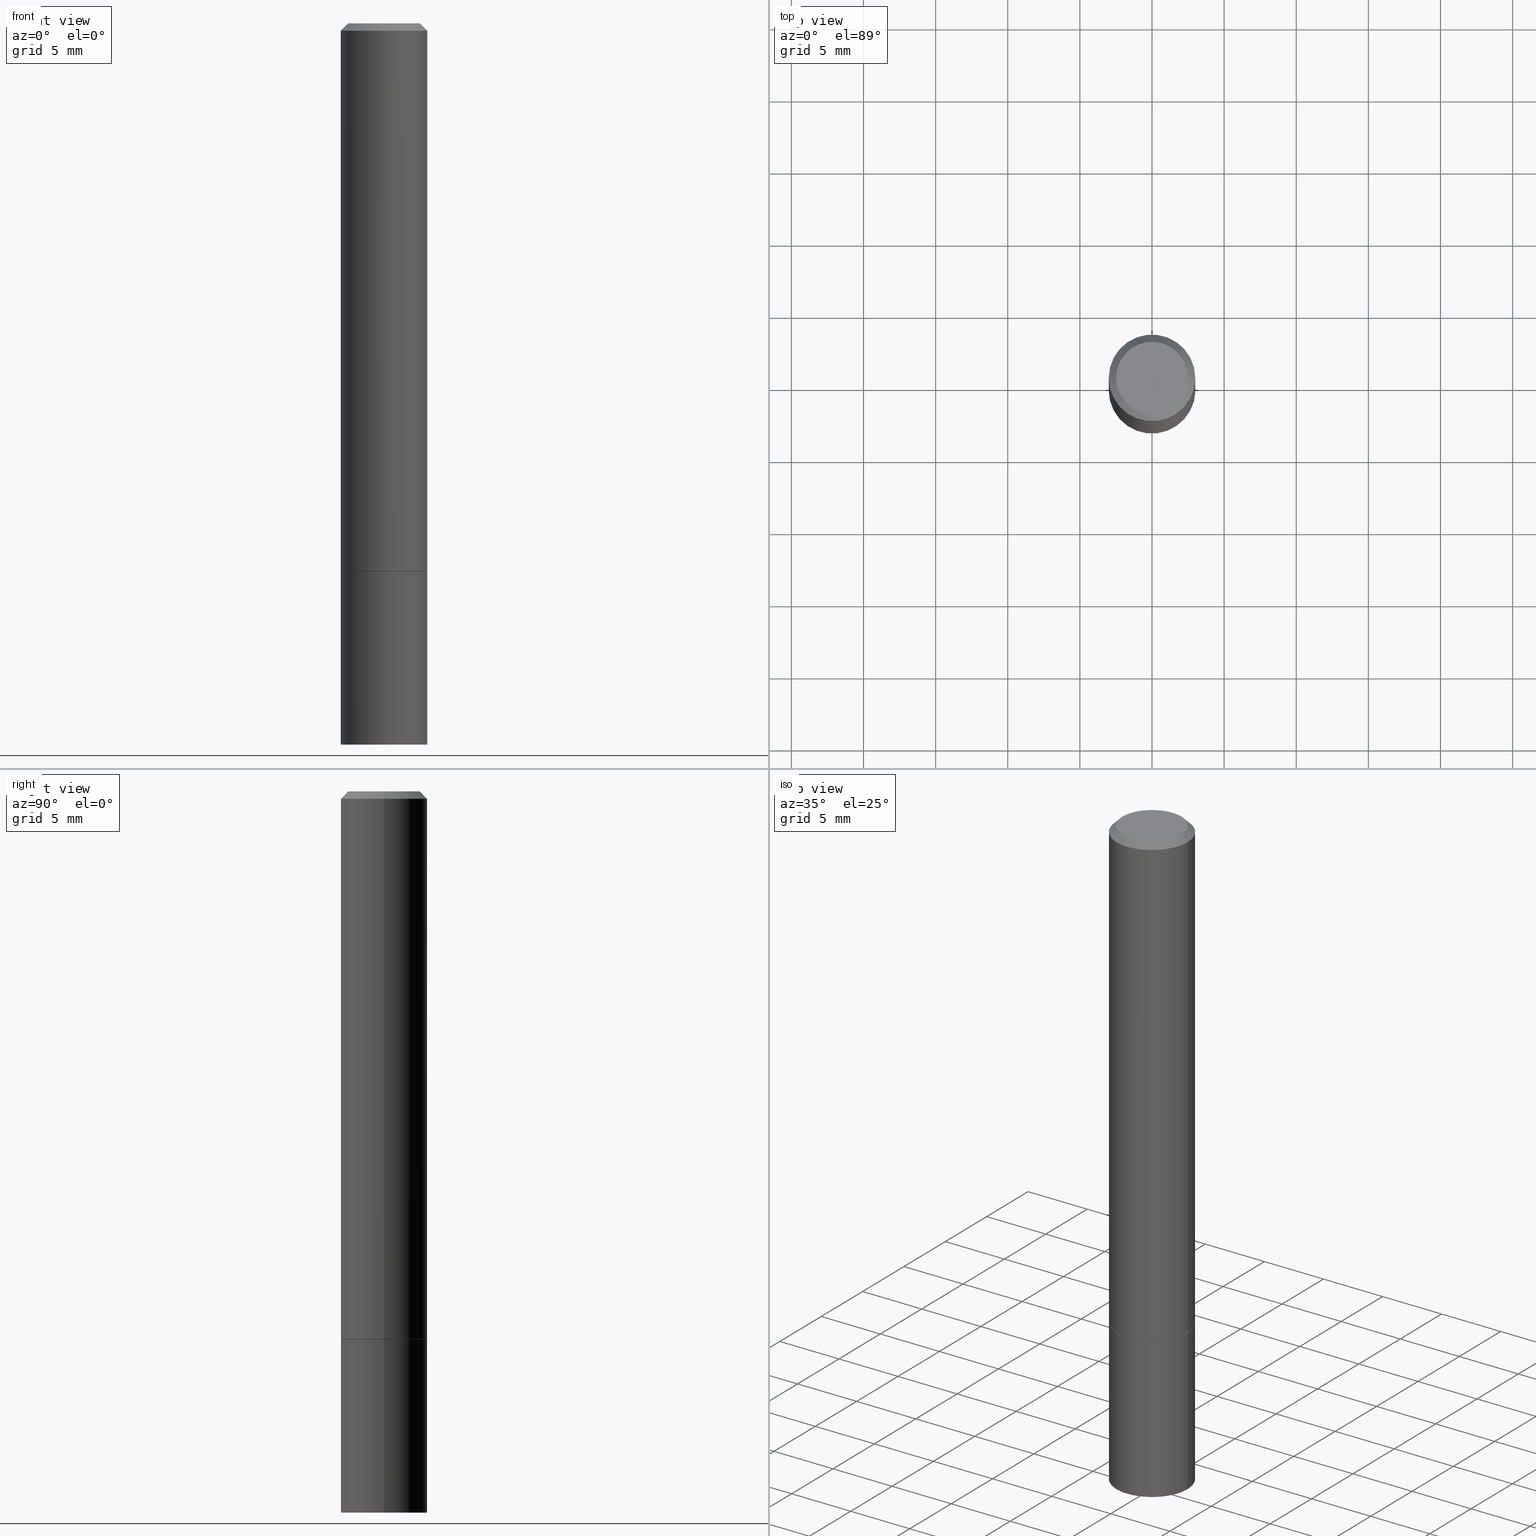
[diagram: canonical four-view strip — front | top / right | iso, engineering-drawing reading convention]
A machine part, canonical four-view strip (front | top / right | iso — engineering-drawing reading convention). The complete STEP part file that produces these views, byte-faithful:
ISO-10303-21;
HEADER;
FILE_DESCRIPTION (( 'STEP AP203' ),
    '1' );
FILE_NAME ('42606.STEP',
    '2024-02-28T03:06:35',
    ( '' ),
    ( '' ),
    'SwSTEP 2.0',
    'SolidWorks 2023',
    '' );
FILE_SCHEMA (( 'CONFIG_CONTROL_DESIGN' ));
ENDSEC;

DATA;
#1 = VECTOR ( 'NONE', #309, 39.37007874015748143 ) ;
#2 = ORIENTED_EDGE ( 'NONE', *, *, #60, .T. ) ;
#3 =( LENGTH_UNIT ( ) NAMED_UNIT ( * ) SI_UNIT ( $, .METRE. ) );
#4 = ORIENTED_EDGE ( 'NONE', *, *, #172, .T. ) ;
#5 = VECTOR ( 'NONE', #174, 39.37007874015748143 ) ;
#6 = ORIENTED_EDGE ( 'NONE', *, *, #244, .T. ) ;
#7 = DIMENSIONAL_EXPONENTS ( 1.000000000000000000, 0.000000000000000000, 0.000000000000000000, 0.000000000000000000, 0.000000000000000000, 0.000000000000000000, 0.000000000000000000 ) ;
#8 = CARTESIAN_POINT ( 'NONE',  ( 0.000000000000000000, 0.000000000000000000, 0.000000000000000000 ) ) ;
#9 = FACE_OUTER_BOUND ( 'NONE', #29, .T. ) ;
#10 = AXIS2_PLACEMENT_3D ( 'NONE', #46, #316, #75 ) ;
#11 = DIRECTION ( 'NONE',  ( 1.000000000000000000, -6.982962677686266711E-15, 4.876176775795935232E-29 ) ) ;
#12 = FACE_OUTER_BOUND ( 'NONE', #168, .T. ) ;
#13 = DIRECTION ( 'NONE',  ( 1.000000000000000000, -6.982962677686266711E-15, 0.000000000000000000 ) ) ;
#14 = DATE_AND_TIME ( #77, #127 ) ;
#15 = CLOSED_SHELL ( 'NONE', ( #151, #79, #198, #73, #317, #300, #98, #303 ) ) ;
#16 = DIRECTION ( 'NONE',  ( -2.445468806185136597E-29, 3.491481338843145583E-15, 1.000000000000000000 ) ) ;
#17 = LOCAL_TIME ( 22, 6, 35.00000000000000000, #187 ) ;
#18 = CIRCLE ( 'NONE', #291, 0.09809999999999979847 ) ;
#19 = DIRECTION ( 'NONE',  ( -2.445468806185136877E-29, 3.491481338843145188E-15, 1.000000000000000000 ) ) ;
#20 = DIRECTION ( 'NONE',  ( 1.000000000000000000, -6.982962677686266711E-15, 4.876176775795935232E-29 ) ) ;
#21 = CALENDAR_DATE ( 2024, 27, 2 ) ;
#22 = DIRECTION ( 'NONE',  ( 2.445468806185136597E-29, -3.491481338843145583E-15, -1.000000000000000000 ) ) ;
#23 = AXIS2_PLACEMENT_3D ( 'NONE', #326, #178, #39 ) ;
#24 = LOCAL_TIME ( 22, 6, 35.00000000000000000, #45 ) ;
#25 = DATE_TIME_ROLE ( 'classification_date' ) ;
#26 = CARTESIAN_POINT ( 'NONE',  ( -0.1180999999999999966, 8.391509709326782957E-16, -5.809262341591043784E-30 ) ) ;
#27 = EDGE_CURVE ( 'NONE', #117, #83, #122, .T. ) ;
#28 = DIRECTION ( 'NONE',  ( -2.445468806185136597E-29, 3.491481338843145583E-15, 1.000000000000000000 ) ) ;
#29 = EDGE_LOOP ( 'NONE', ( #259, #67, #40, #138 ) ) ;
#30 = EDGE_LOOP ( 'NONE', ( #58, #115, #193, #118 ) ) ;
#31 = ORIENTED_EDGE ( 'NONE', *, *, #169, .F. ) ;
#32 = EDGE_CURVE ( 'NONE', #83, #117, #202, .T. ) ;
#33 = MANIFOLD_SOLID_BREP ( 'Body-Move/Copy2[1]', #306 ) ;
#34 = VERTEX_POINT ( 'NONE', #61 ) ;
#35 = DIRECTION ( 'NONE',  ( -2.438088387897960049E-29, 3.491481338843145188E-15, 1.000000000000000000 ) ) ;
#36 = CARTESIAN_POINT ( 'NONE',  ( 4.813905344975441835E-29, -6.872981015512731707E-15, -1.968500000000000139 ) ) ;
#37 = CIRCLE ( 'NONE', #92, 0.1170999999999999958 ) ;
#38 = CC_DESIGN_APPROVAL ( #281, ( #347 ) ) ;
#39 = DIRECTION ( 'NONE',  ( 1.000000000000000000, -6.982962677686264344E-15, 0.000000000000000000 ) ) ;
#40 = ORIENTED_EDGE ( 'NONE', *, *, #96, .T. ) ;
#41 = APPROVAL_STATUS ( 'not_yet_approved' ) ;
#42 = DIRECTION ( 'NONE',  ( -1.000000000000000000, 6.982962677686266711E-15, 0.000000000000000000 ) ) ;
#43 = COORDINATED_UNIVERSAL_TIME_OFFSET ( 5, 0, .BEHIND. ) ;
#44 = CONICAL_SURFACE ( 'NONE', #269, 0.1180999999999997746, 0.7853981633974471688 ) ;
#45 = COORDINATED_UNIVERSAL_TIME_OFFSET ( 5, 0, .BEHIND. ) ;
#46 = CARTESIAN_POINT ( 'NONE',  ( 3.658665880933582389E-29, -5.223605231043229660E-15, -1.496099999999999985 ) ) ;
#47 = DESIGN_CONTEXT ( 'detailed design', #57, 'design' ) ;
#48 = PERSON_AND_ORGANIZATION_ROLE ( 'design_owner' ) ;
#49 = CARTESIAN_POINT ( 'NONE',  ( -0.1170999999999999958, -4.391559687468152471E-15, -1.496099999999999985 ) ) ;
#50 = EDGE_CURVE ( 'NONE', #341, #286, #179, .T. ) ;
#51 = CARTESIAN_POINT ( 'NONE',  ( 6.850286386810212718E-16, 0.09809999999999979847, -3.510513443207126726E-16 ) ) ;
#52 = CYLINDRICAL_SURFACE ( 'NONE', #345, 0.1180999999999999966 ) ;
#53 = EDGE_LOOP ( 'NONE', ( #285, #85, #6, #254 ) ) ;
#54 = ORIENTED_EDGE ( 'NONE', *, *, #89, .F. ) ;
#55 = AXIS2_PLACEMENT_3D ( 'NONE', #149, #266, #13 ) ;
#56 = DIRECTION ( 'NONE',  ( -1.000000000000000000, 6.982962677686265922E-15, -4.876176775795935793E-29 ) ) ;
#57 = APPLICATION_CONTEXT ( 'configuration controlled 3d designs of mechanical parts and assemblies' ) ;
#58 = ORIENTED_EDGE ( 'NONE', *, *, #50, .T. ) ;
#59 = LOCAL_TIME ( 22, 6, 35.00000000000000000, #43 ) ;
#60 = EDGE_CURVE ( 'NONE', #144, #88, #296, .T. ) ;
#61 = CARTESIAN_POINT ( 'NONE',  ( 0.1170999999999999958, -6.041310160600291119E-15, -1.496099999999999985 ) ) ;
#62 = DIRECTION ( 'NONE',  ( 1.000000000000000000, -6.982962677686265133E-15, 0.000000000000000000 ) ) ;
#63 = DIRECTION ( 'NONE',  ( -2.445468806185136597E-29, 3.491481338843145583E-15, 1.000000000000000000 ) ) ;
#64 = CIRCLE ( 'NONE', #148, 0.1170999999999999958 ) ;
#65 =( NAMED_UNIT ( * ) SI_UNIT ( $, .STERADIAN. ) SOLID_ANGLE_UNIT ( ) );
#66 = CARTESIAN_POINT ( 'NONE',  ( 3.658665880933582389E-29, -5.223605231043229660E-15, -1.496099999999999985 ) ) ;
#67 = ORIENTED_EDGE ( 'NONE', *, *, #145, .T. ) ;
#68 = SHAPE_DEFINITION_REPRESENTATION ( #206, #204 ) ;
#69 = FACE_OUTER_BOUND ( 'NONE', #166, .T. ) ;
#70 = APPROVAL_DATE_TIME ( #100, #275 ) ;
#71 = AXIS2_PLACEMENT_3D ( 'NONE', #330, #324, #94 ) ;
#72 = DIRECTION ( 'NONE',  ( -1.000000000000000000, 6.982962677686265922E-15, -4.876176775795935793E-29 ) ) ;
#73 = ADVANCED_FACE ( 'NONE', ( #354 ), #44, .T. ) ;
#74 = PERSON_AND_ORGANIZATION ( #177, #154 ) ;
#75 = DIRECTION ( 'NONE',  ( 1.000000000000000000, -6.982962677686264344E-15, 0.000000000000000000 ) ) ;
#76 = UNCERTAINTY_MEASURE_WITH_UNIT (LENGTH_MEASURE( 1.000000000000000082E-05 ), #114, 'distance_accuracy_value', 'NONE');
#77 = CALENDAR_DATE ( 2024, 27, 2 ) ;
#78 = DIRECTION ( 'NONE',  ( 2.438088387897960049E-29, -3.491481338843145188E-15, -1.000000000000000000 ) ) ;
#79 = ADVANCED_FACE ( 'NONE', ( #12 ), #95, .T. ) ;
#80 = APPROVAL_DATE_TIME ( #212, #220 ) ;
#81 = CARTESIAN_POINT ( 'NONE',  ( -0.09809999999999979847, 7.199434520694523292E-16, -1.707404996040655701E-17 ) ) ;
#82 = DIRECTION ( 'NONE',  ( 1.000000000000000000, -6.982962677686266711E-15, 4.876176775795936353E-29 ) ) ;
#83 = VERTEX_POINT ( 'NONE', #153 ) ;
#84 = ORIENTED_EDGE ( 'NONE', *, *, #239, .T. ) ;
#85 = ORIENTED_EDGE ( 'NONE', *, *, #175, .T. ) ;
#86 = VECTOR ( 'NONE', #19, 39.37007874015748143 ) ;
#87 = CARTESIAN_POINT ( 'NONE',  ( 0.000000000000000000, 0.000000000000000000, 0.000000000000000000 ) ) ;
#88 = VERTEX_POINT ( 'NONE', #176 ) ;
#89 = EDGE_CURVE ( 'NONE', #34, #112, #37, .T. ) ;
#90 = APPLICATION_PROTOCOL_DEFINITION ( 'international standard', 'config_control_design', 1994, #298 ) ;
#91 = CARTESIAN_POINT ( 'NONE',  ( 3.658665880933582389E-29, -5.223605231043229660E-15, -1.496099999999999985 ) ) ;
#92 = AXIS2_PLACEMENT_3D ( 'NONE', #91, #205, #351 ) ;
#93 = APPROVAL_PERSON_ORGANIZATION ( #270, #220, #310 ) ;
#94 = DIRECTION ( 'NONE',  ( 1.000000000000000000, -6.982962677686265133E-15, 0.000000000000000000 ) ) ;
#95 = CYLINDRICAL_SURFACE ( 'NONE', #251, 0.1180999999999998995 ) ;
#96 = EDGE_CURVE ( 'NONE', #341, #88, #236, .T. ) ;
#97 = ORIENTED_EDGE ( 'NONE', *, *, #175, .F. ) ;
#98 = ADVANCED_FACE ( 'NONE', ( #208 ), #293, .F. ) ;
#99 = ORIENTED_EDGE ( 'NONE', *, *, #337, .F. ) ;
#100 = DATE_AND_TIME ( #103, #59 ) ;
#101 = CC_DESIGN_DATE_AND_TIME_ASSIGNMENT ( #14, #25, ( #165 ) ) ;
#102 = LINE ( 'NONE', #279, #173 ) ;
#103 = CALENDAR_DATE ( 2024, 27, 2 ) ;
#104 = DIRECTION ( 'NONE',  ( -2.445468806185136877E-29, 3.491481338843145188E-15, 1.000000000000000000 ) ) ;
#105 = CIRCLE ( 'NONE', #183, 0.1180999999999999966 ) ;
#106 = FACE_OUTER_BOUND ( 'NONE', #211, .T. ) ;
#107 = PRODUCT_DEFINITION_FORMATION_WITH_SPECIFIED_SOURCE ( 'ANY', '', #261, .NOT_KNOWN. ) ;
#108 = APPLICATION_PROTOCOL_DEFINITION ( 'international standard', 'config_control_design', 1994, #57 ) ;
#109 = DIRECTION ( 'NONE',  ( 1.000000000000000000, -6.982962677686266711E-15, 0.000000000000000000 ) ) ;
#110 = DATE_TIME_ROLE ( 'creation_date' ) ;
#111 = CC_DESIGN_PERSON_AND_ORGANIZATION_ASSIGNMENT ( #185, #48, ( #261 ) ) ;
#112 = VERTEX_POINT ( 'NONE', #125 ) ;
#113 = ADVANCED_FACE ( 'NONE', ( #9 ), #124, .T. ) ;
#114 =( CONVERSION_BASED_UNIT ( 'INCH', #197 ) LENGTH_UNIT ( ) NAMED_UNIT ( #7 ) );
#115 = ORIENTED_EDGE ( 'NONE', *, *, #288, .T. ) ;
#116 = DIRECTION ( 'NONE',  ( 2.438088387897960049E-29, -3.491481338843145188E-15, -1.000000000000000000 ) ) ;
#117 = VERTEX_POINT ( 'NONE', #234 ) ;
#118 = ORIENTED_EDGE ( 'NONE', *, *, #96, .F. ) ;
#119 = ORIENTED_EDGE ( 'NONE', *, *, #217, .T. ) ;
#120 = DIRECTION ( 'NONE',  ( 0.000000000000000000, 0.000000000000000000, 1.000000000000000000 ) ) ;
#121 = CARTESIAN_POINT ( 'NONE',  ( 0.000000000000000000, 0.000000000000000000, 0.000000000000000000 ) ) ;
#122 = CIRCLE ( 'NONE', #71, 0.1180999999999999966 ) ;
#123 = DIRECTION ( 'NONE',  ( -2.445468806185136597E-29, 3.491481338843145583E-15, 1.000000000000000000 ) ) ;
#124 = CYLINDRICAL_SURFACE ( 'NONE', #132, 0.1180999999999999966 ) ;
#125 = CARTESIAN_POINT ( 'NONE',  ( -0.1170999999999999958, -4.386261233119930069E-15, -1.496099999999999985 ) ) ;
#126 = APPROVAL_STATUS ( 'not_yet_approved' ) ;
#127 = LOCAL_TIME ( 22, 6, 35.00000000000000000, #278 ) ;
#128 = DIRECTION ( 'NONE',  ( -2.445468806185136597E-29, 3.491481338843145583E-15, 1.000000000000000000 ) ) ;
#129 = COORDINATED_UNIVERSAL_TIME_OFFSET ( 5, 0, .BEHIND. ) ;
#130 = FACE_OUTER_BOUND ( 'NONE', #318, .T. ) ;
#131 = DIRECTION ( 'NONE',  ( -2.445468806185136597E-29, 3.491481338843145583E-15, 1.000000000000000000 ) ) ;
#132 = AXIS2_PLACEMENT_3D ( 'NONE', #121, #180, #207 ) ;
#133 = CARTESIAN_POINT ( 'NONE',  ( 3.658665880933582389E-29, -5.223605231043229660E-15, -1.496099999999999985 ) ) ;
#134 = CARTESIAN_POINT ( 'NONE',  ( 0.1180999999999998995, -8.246878922347473751E-16, 5.758764772214994835E-30 ) ) ;
#135 = LINE ( 'NONE', #340, #339 ) ;
#136 = CC_DESIGN_PERSON_AND_ORGANIZATION_ASSIGNMENT ( #267, #272, ( #107 ) ) ;
#137 = AXIS2_PLACEMENT_3D ( 'NONE', #66, #35, #268 ) ;
#138 = ORIENTED_EDGE ( 'NONE', *, *, #60, .F. ) ;
#139 = FACE_OUTER_BOUND ( 'NONE', #30, .T. ) ;
#140 = ORIENTED_EDGE ( 'NONE', *, *, #27, .F. ) ;
#141 = ORIENTED_EDGE ( 'NONE', *, *, #237, .F. ) ;
#142 = VERTEX_POINT ( 'NONE', #349 ) ;
#143 = AXIS2_PLACEMENT_3D ( 'NONE', #313, #189, #109 ) ;
#144 = VERTEX_POINT ( 'NONE', #294 ) ;
#145 = EDGE_CURVE ( 'NONE', #286, #341, #105, .T. ) ;
#146 = CARTESIAN_POINT ( 'NONE',  ( 3.656220412127397346E-29, -5.220113749704386653E-15, -1.495099999999999874 ) ) ;
#147 = DIRECTION ( 'NONE',  ( 1.000000000000000000, -6.982962677686265133E-15, 0.000000000000000000 ) ) ;
#148 = AXIS2_PLACEMENT_3D ( 'NONE', #133, #157, #280 ) ;
#149 = CARTESIAN_POINT ( 'NONE',  ( 4.890937612370282792E-31, -6.982962677686303935E-17, -0.02000000000000003858 ) ) ;
#150 = CARTESIAN_POINT ( 'NONE',  ( 4.813905344975441835E-29, -6.872981015512731707E-15, -1.968500000000000139 ) ) ;
#151 = ADVANCED_FACE ( 'NONE', ( #262 ), #362, .T. ) ;
#152 = DATE_AND_TIME ( #308, #24 ) ;
#153 = CARTESIAN_POINT ( 'NONE',  ( -0.1180999999999999966, -1.805820717307944806E-15, -1.495099999999999874 ) ) ;
#154 = ORGANIZATION ( 'UNSPECIFIED', 'UNSPECIFIED', '' ) ;
#155 = APPROVAL_DATE_TIME ( #152, #281 ) ;
#156 = MANIFOLD_SOLID_BREP ( 'Body-Move/Copy2[2]', #15 ) ;
#157 = DIRECTION ( 'NONE',  ( -2.445468806185136597E-29, 3.491481338843145583E-15, 1.000000000000000000 ) ) ;
#158 = PERSON_AND_ORGANIZATION_ROLE ( 'creator' ) ;
#159 = LINE ( 'NONE', #134, #355 ) ;
#160 = PLANE ( 'NONE',  #264 ) ;
#161 = APPROVAL_STATUS ( 'not_yet_approved' ) ;
#162 = DIRECTION ( 'NONE',  ( -1.000000000000000000, 6.982962677686266711E-15, 0.000000000000000000 ) ) ;
#163 = LINE ( 'NONE', #49, #195 ) ;
#164 = ORIENTED_EDGE ( 'NONE', *, *, #50, .F. ) ;
#165 = SECURITY_CLASSIFICATION ( '', '', #301 ) ;
#166 = EDGE_LOOP ( 'NONE', ( #84, #2 ) ) ;
#167 = EDGE_LOOP ( 'NONE', ( #54, #97 ) ) ;
#168 = EDGE_LOOP ( 'NONE', ( #322, #320, #170, #141 ) ) ;
#169 = EDGE_CURVE ( 'NONE', #199, #142, #215, .T. ) ;
#170 = ORIENTED_EDGE ( 'NONE', *, *, #232, .F. ) ;
#171 = AXIS2_PLACEMENT_3D ( 'NONE', #250, #191, #331 ) ;
#172 = EDGE_CURVE ( 'NONE', #226, #352, #319, .T. ) ;
#173 = VECTOR ( 'NONE', #186, 39.37007874015748854 ) ;
#174 = DIRECTION ( 'NONE',  ( -2.445468806185136877E-29, 3.491481338843145188E-15, 1.000000000000000000 ) ) ;
#175 = EDGE_CURVE ( 'NONE', #112, #34, #64, .T. ) ;
#176 = CARTESIAN_POINT ( 'NONE',  ( 0.1180999999999999966, -6.048293123277977134E-15, -1.496099999999999985 ) ) ;
#177 = PERSON ( 'UNSPECIFIED', 'UNSPECIFIED', 'UNSPECIFIED', ('UNSPECIFIED'), ('UNSPECIFIED'), ('UNSPECIFIED') ) ;
#178 = DIRECTION ( 'NONE',  ( -2.445468806185136597E-29, 3.491481338843145583E-15, 1.000000000000000000 ) ) ;
#179 = CIRCLE ( 'NONE', #227, 0.1180999999999999966 ) ;
#180 = DIRECTION ( 'NONE',  ( -2.445468806185136597E-29, 3.491481338843145583E-15, 1.000000000000000000 ) ) ;
#181 = EDGE_LOOP ( 'NONE', ( #164, #346 ) ) ;
#182 = LINE ( 'NONE', #26, #86 ) ;
#183 = AXIS2_PLACEMENT_3D ( 'NONE', #36, #63, #147 ) ;
#184 = CC_DESIGN_APPROVAL ( #220, ( #107 ) ) ;
#185 = PERSON_AND_ORGANIZATION ( #177, #154 ) ;
#186 = DIRECTION ( 'NONE',  ( 0.7071067811865232589, -2.468850131082003836E-15, 0.7071067811865715536 ) ) ;
#187 = COORDINATED_UNIVERSAL_TIME_OFFSET ( 5, 0, .BEHIND. ) ;
#188 = CARTESIAN_POINT ( 'NONE',  ( 0.1180999999999999966, -7.697668907747479970E-15, -1.968500000000000139 ) ) ;
#189 = DIRECTION ( 'NONE',  ( -2.445468806185136597E-29, 3.491481338843145583E-15, 1.000000000000000000 ) ) ;
#190 = CIRCLE ( 'NONE', #171, 0.1180999999999999966 ) ;
#191 = DIRECTION ( 'NONE',  ( -2.445468806185136597E-29, 3.491481338843145583E-15, 1.000000000000000000 ) ) ;
#192 = CC_DESIGN_PERSON_AND_ORGANIZATION_ASSIGNMENT ( #245, #242, ( #165 ) ) ;
#193 = ORIENTED_EDGE ( 'NONE', *, *, #239, .F. ) ;
#194 = ORIENTED_EDGE ( 'NONE', *, *, #232, .T. ) ;
#195 = VECTOR ( 'NONE', #271, 39.37007874015748854 ) ;
#196 = ORIENTED_EDGE ( 'NONE', *, *, #276, .T. ) ;
#197 = LENGTH_MEASURE_WITH_UNIT ( LENGTH_MEASURE( 0.02539999999999999897 ), #3 );
#198 = ADVANCED_FACE ( 'NONE', ( #106 ), #247, .T. ) ;
#199 = VERTEX_POINT ( 'NONE', #274 ) ;
#200 = ORIENTED_EDGE ( 'NONE', *, *, #172, .F. ) ;
#201 = ORIENTED_EDGE ( 'NONE', *, *, #244, .F. ) ;
#202 = CIRCLE ( 'NONE', #290, 0.1180999999999999966 ) ;
#203 = AXIS2_PLACEMENT_3D ( 'NONE', #51, #78, #243 ) ;
#204 = ADVANCED_BREP_SHAPE_REPRESENTATION ( '42606', ( #33, #156, #216 ), #323 ) ;
#205 = DIRECTION ( 'NONE',  ( -2.445468806185136597E-29, 3.491481338843145583E-15, 1.000000000000000000 ) ) ;
#206 = PRODUCT_DEFINITION_SHAPE ( 'NONE', 'NONE',  #347 ) ;
#207 = DIRECTION ( 'NONE',  ( 1.000000000000000000, -6.982962677686266711E-15, 4.876176775795936353E-29 ) ) ;
#208 = FACE_OUTER_BOUND ( 'NONE', #167, .T. ) ;
#209 = AXIS2_PLACEMENT_3D ( 'NONE', #238, #131, #222 ) ;
#210 = CONICAL_SURFACE ( 'NONE', #10, 0.1170999999999999958, 0.7853981633974141952 ) ;
#211 = EDGE_LOOP ( 'NONE', ( #231, #196, #194, #225 ) ) ;
#212 = DATE_AND_TIME ( #21, #223 ) ;
#213 = CARTESIAN_POINT ( 'NONE',  ( 4.890937612370282792E-31, -6.982962677686303935E-17, -0.02000000000000003858 ) ) ;
#214 = CARTESIAN_POINT ( 'NONE',  ( 0.000000000000000000, 0.000000000000000000, 0.000000000000000000 ) ) ;
#215 = CIRCLE ( 'NONE', #55, 0.1180999999999997746 ) ;
#216 = AXIS2_PLACEMENT_3D ( 'NONE', #8, #120, #233 ) ;
#217 = EDGE_CURVE ( 'NONE', #112, #83, #163, .T. ) ;
#218 = PLANE ( 'NONE',  #256 ) ;
#219 = CARTESIAN_POINT ( 'NONE',  ( 4.175405657340879278E-46, -5.961372681521788801E-32, -1.707404996040164512E-17 ) ) ;
#220 = APPROVAL ( #41, 'UNSPECIFIED' ) ;
#221 = APPROVAL_ROLE ( '' ) ;
#222 = DIRECTION ( 'NONE',  ( 1.000000000000000000, -6.982962677686267499E-15, 4.875229006325907382E-29 ) ) ;
#223 = LOCAL_TIME ( 22, 6, 35.00000000000000000, #129 ) ;
#224 = CARTESIAN_POINT ( 'NONE',  ( 8.246878922347960873E-16, 0.1180999999999931133, -1.968500000000000583 ) ) ;
#225 = ORIENTED_EDGE ( 'NONE', *, *, #356, .F. ) ;
#226 = VERTEX_POINT ( 'NONE', #81 ) ;
#227 = AXIS2_PLACEMENT_3D ( 'NONE', #150, #128, #328 ) ;
#228 = ADVANCED_FACE ( 'NONE', ( #69 ), #218, .F. ) ;
#229 = ORIENTED_EDGE ( 'NONE', *, *, #252, .T. ) ;
#230 = PRODUCT_RELATED_PRODUCT_CATEGORY ( 'detail', '', ( #261 ) ) ;
#231 = ORIENTED_EDGE ( 'NONE', *, *, #252, .F. ) ;
#232 = EDGE_CURVE ( 'NONE', #142, #199, #314, .T. ) ;
#233 = DIRECTION ( 'NONE',  ( 1.000000000000000000, 0.000000000000000000, 0.000000000000000000 ) ) ;
#234 = CARTESIAN_POINT ( 'NONE',  ( 0.1180999999999999966, -6.044801641939134915E-15, -1.495099999999999874 ) ) ;
#235 = CARTESIAN_POINT ( 'NONE',  ( 0.000000000000000000, 0.000000000000000000, 0.000000000000000000 ) ) ;
#236 = LINE ( 'NONE', #265, #5 ) ;
#237 = EDGE_CURVE ( 'NONE', #117, #142, #159, .T. ) ;
#238 = CARTESIAN_POINT ( 'NONE',  ( 4.175405657340879278E-46, -5.961372681521788801E-32, -1.707404996040164512E-17 ) ) ;
#239 = EDGE_CURVE ( 'NONE', #88, #144, #190, .T. ) ;
#240 = PERSON_AND_ORGANIZATION_ROLE ( 'creator' ) ;
#241 = LINE ( 'NONE', #363, #1 ) ;
#242 = PERSON_AND_ORGANIZATION_ROLE ( 'classification_officer' ) ;
#243 = DIRECTION ( 'NONE',  ( -1.000000000000000000, 6.982962677686265922E-15, -4.876176775795935793E-29 ) ) ;
#244 = EDGE_CURVE ( 'NONE', #34, #117, #102, .T. ) ;
#245 = PERSON_AND_ORGANIZATION ( #177, #154 ) ;
#246 = LINE ( 'NONE', #361, #297 ) ;
#247 = CONICAL_SURFACE ( 'NONE', #344, 0.1180999999999997746, 0.7853981633974471688 ) ;
#248 = APPROVAL_PERSON_ORGANIZATION ( #364, #281, #221 ) ;
#249 = DIRECTION ( 'NONE',  ( 2.438088387897960049E-29, -3.491481338843145188E-15, -1.000000000000000000 ) ) ;
#250 = CARTESIAN_POINT ( 'NONE',  ( 3.658665880933582389E-29, -5.223605231043229660E-15, -1.496099999999999985 ) ) ;
#251 = AXIS2_PLACEMENT_3D ( 'NONE', #235, #295, #11 ) ;
#252 = EDGE_CURVE ( 'NONE', #352, #226, #18, .T. ) ;
#253 = EDGE_LOOP ( 'NONE', ( #321, #200, #255, #325 ) ) ;
#254 = ORIENTED_EDGE ( 'NONE', *, *, #32, .F. ) ;
#255 = ORIENTED_EDGE ( 'NONE', *, *, #356, .T. ) ;
#256 = AXIS2_PLACEMENT_3D ( 'NONE', #358, #249, #72 ) ;
#257 = ORIENTED_EDGE ( 'NONE', *, *, #237, .T. ) ;
#258 = CC_DESIGN_PERSON_AND_ORGANIZATION_ASSIGNMENT ( #332, #240, ( #107 ) ) ;
#259 = ORIENTED_EDGE ( 'NONE', *, *, #288, .F. ) ;
#260 = CARTESIAN_POINT ( 'NONE',  ( 3.658665880933582389E-29, -5.223605231043229660E-15, -1.496099999999999985 ) ) ;
#261 = PRODUCT ( '42606', '42606', '', ( #304 ) ) ;
#262 = FACE_OUTER_BOUND ( 'NONE', #282, .T. ) ;
#263 = AXIS2_PLACEMENT_3D ( 'NONE', #260, #16, #302 ) ;
#264 = AXIS2_PLACEMENT_3D ( 'NONE', #224, #116, #56 ) ;
#265 = CARTESIAN_POINT ( 'NONE',  ( 0.1180999999999999966, -8.246878922347480654E-16, 5.758764772215000440E-30 ) ) ;
#266 = DIRECTION ( 'NONE',  ( -2.445468806185136597E-29, 3.491481338843145583E-15, 1.000000000000000000 ) ) ;
#267 = PERSON_AND_ORGANIZATION ( #177, #154 ) ;
#268 = DIRECTION ( 'NONE',  ( 1.000000000000000000, -6.982962677686265922E-15, 4.876176775795935793E-29 ) ) ;
#269 = AXIS2_PLACEMENT_3D ( 'NONE', #299, #348, #42 ) ;
#270 = PERSON_AND_ORGANIZATION ( #177, #154 ) ;
#271 = DIRECTION ( 'NONE',  ( -0.7071067811865232589, 7.493145998870265808E-15, 0.7071067811865715536 ) ) ;
#272 = PERSON_AND_ORGANIZATION_ROLE ( 'design_supplier' ) ;
#273 = FACE_OUTER_BOUND ( 'NONE', #343, .T. ) ;
#274 = CARTESIAN_POINT ( 'NONE',  ( -0.1180999999999997746, 7.548582654578833867E-16, -0.02000000000000003858 ) ) ;
#275 = APPROVAL ( #126, 'UNSPECIFIED' ) ;
#276 = EDGE_CURVE ( 'NONE', #352, #142, #241, .T. ) ;
#277 = AXIS2_PLACEMENT_3D ( 'NONE', #214, #333, #20 ) ;
#278 = COORDINATED_UNIVERSAL_TIME_OFFSET ( 5, 0, .BEHIND. ) ;
#279 = CARTESIAN_POINT ( 'NONE',  ( 0.1170999999999999958, -6.041310160600291119E-15, -1.496099999999999985 ) ) ;
#280 = DIRECTION ( 'NONE',  ( 1.000000000000000000, -6.982962677686264344E-15, 0.000000000000000000 ) ) ;
#281 = APPROVAL ( #161, 'UNSPECIFIED' ) ;
#282 = EDGE_LOOP ( 'NONE', ( #283, #119, #140, #201 ) ) ;
#283 = ORIENTED_EDGE ( 'NONE', *, *, #89, .T. ) ;
#284 = DIRECTION ( 'NONE',  ( -0.7071067811865466846, 2.468850131082247989E-15, -0.7071067811865483499 ) ) ;
#285 = ORIENTED_EDGE ( 'NONE', *, *, #217, .F. ) ;
#286 = VERTEX_POINT ( 'NONE', #338 ) ;
#287 = CC_DESIGN_DATE_AND_TIME_ASSIGNMENT ( #334, #110, ( #347 ) ) ;
#288 = EDGE_CURVE ( 'NONE', #286, #144, #182, .T. ) ;
#289 = CARTESIAN_POINT ( 'NONE',  ( 0.09809999999999979847, -7.765346469475326737E-16, -1.707404996039653601E-17 ) ) ;
#290 = AXIS2_PLACEMENT_3D ( 'NONE', #146, #123, #62 ) ;
#291 = AXIS2_PLACEMENT_3D ( 'NONE', #219, #28, #365 ) ;
#292 = ORIENTED_EDGE ( 'NONE', *, *, #32, .T. ) ;
#293 = PLANE ( 'NONE',  #137 ) ;
#294 = CARTESIAN_POINT ( 'NONE',  ( -0.1180999999999999966, -5.209142152345302092E-15, -1.496099999999999985 ) ) ;
#295 = DIRECTION ( 'NONE',  ( -2.445468806185136597E-29, 3.491481338843145583E-15, 1.000000000000000000 ) ) ;
#296 = CIRCLE ( 'NONE', #263, 0.1180999999999999966 ) ;
#297 = VECTOR ( 'NONE', #335, 39.37007874015748143 ) ;
#298 = APPLICATION_CONTEXT ( 'configuration controlled 3d designs of mechanical parts and assemblies' ) ;
#299 = CARTESIAN_POINT ( 'NONE',  ( 4.890937612370282792E-31, -6.982962677686303935E-17, -0.02000000000000003858 ) ) ;
#300 = ADVANCED_FACE ( 'NONE', ( #305 ), #210, .T. ) ;
#301 = SECURITY_CLASSIFICATION_LEVEL ( 'unclassified' ) ;
#302 = DIRECTION ( 'NONE',  ( 1.000000000000000000, -6.982962677686265133E-15, 0.000000000000000000 ) ) ;
#303 = ADVANCED_FACE ( 'NONE', ( #130 ), #336, .F. ) ;
#304 = MECHANICAL_CONTEXT ( 'NONE', #298, 'mechanical' ) ;
#305 = FACE_OUTER_BOUND ( 'NONE', #53, .T. ) ;
#306 = CLOSED_SHELL ( 'NONE', ( #366, #350, #228, #113 ) ) ;
#307 = CC_DESIGN_SECURITY_CLASSIFICATION ( #165, ( #107 ) ) ;
#308 = CALENDAR_DATE ( 2024, 27, 2 ) ;
#309 = DIRECTION ( 'NONE',  ( 0.7071067811865466846, -7.319954787623252890E-15, -0.7071067811865483499 ) ) ;
#310 = APPROVAL_ROLE ( '' ) ;
#311 = FACE_OUTER_BOUND ( 'NONE', #181, .T. ) ;
#312 = CALENDAR_DATE ( 2024, 27, 2 ) ;
#313 = CARTESIAN_POINT ( 'NONE',  ( 4.890937612370282792E-31, -6.982962677686303935E-17, -0.02000000000000003858 ) ) ;
#314 = CIRCLE ( 'NONE', #143, 0.1180999999999997746 ) ;
#315 = CC_DESIGN_APPROVAL ( #275, ( #165 ) ) ;
#316 = DIRECTION ( 'NONE',  ( -2.445468806185136597E-29, 3.491481338843145583E-15, 1.000000000000000000 ) ) ;
#317 = ADVANCED_FACE ( 'NONE', ( #273 ), #360, .T. ) ;
#318 = EDGE_LOOP ( 'NONE', ( #4, #229 ) ) ;
#319 = CIRCLE ( 'NONE', #209, 0.09809999999999979847 ) ;
#320 = ORIENTED_EDGE ( 'NONE', *, *, #337, .T. ) ;
#321 = ORIENTED_EDGE ( 'NONE', *, *, #276, .F. ) ;
#322 = ORIENTED_EDGE ( 'NONE', *, *, #27, .T. ) ;
#323 =( GEOMETRIC_REPRESENTATION_CONTEXT ( 3 ) GLOBAL_UNCERTAINTY_ASSIGNED_CONTEXT ( ( #76 ) ) GLOBAL_UNIT_ASSIGNED_CONTEXT ( ( #114, #327, #65 ) ) REPRESENTATION_CONTEXT ( 'NONE', 'WORKASPACE' ) );
#324 = DIRECTION ( 'NONE',  ( -2.445468806185136597E-29, 3.491481338843145583E-15, 1.000000000000000000 ) ) ;
#325 = ORIENTED_EDGE ( 'NONE', *, *, #169, .T. ) ;
#326 = CARTESIAN_POINT ( 'NONE',  ( 3.658665880933582389E-29, -5.223605231043229660E-15, -1.496099999999999985 ) ) ;
#327 =( NAMED_UNIT ( * ) PLANE_ANGLE_UNIT ( ) SI_UNIT ( $, .RADIAN. ) );
#328 = DIRECTION ( 'NONE',  ( 1.000000000000000000, -6.982962677686265133E-15, 0.000000000000000000 ) ) ;
#329 = APPROVAL_PERSON_ORGANIZATION ( #359, #275, #357 ) ;
#330 = CARTESIAN_POINT ( 'NONE',  ( 3.656220412127397346E-29, -5.220113749704386653E-15, -1.495099999999999874 ) ) ;
#331 = DIRECTION ( 'NONE',  ( 1.000000000000000000, -6.982962677686265133E-15, 0.000000000000000000 ) ) ;
#332 = PERSON_AND_ORGANIZATION ( #177, #154 ) ;
#333 = DIRECTION ( 'NONE',  ( -2.445468806185136597E-29, 3.491481338843145583E-15, 1.000000000000000000 ) ) ;
#334 = DATE_AND_TIME ( #312, #17 ) ;
#335 = DIRECTION ( 'NONE',  ( -2.445468806185136877E-29, 3.491481338843145188E-15, 1.000000000000000000 ) ) ;
#336 = PLANE ( 'NONE',  #203 ) ;
#337 = EDGE_CURVE ( 'NONE', #83, #199, #246, .T. ) ;
#338 = CARTESIAN_POINT ( 'NONE',  ( -0.1180999999999999966, -5.209142152345302092E-15, -1.968500000000000139 ) ) ;
#339 = VECTOR ( 'NONE', #284, 39.37007874015748143 ) ;
#340 = CARTESIAN_POINT ( 'NONE',  ( -0.1180999999999997746, 7.548582654578833867E-16, -0.02000000000000003858 ) ) ;
#341 = VERTEX_POINT ( 'NONE', #188 ) ;
#342 = DIRECTION ( 'NONE',  ( -2.445468806185136597E-29, 3.491481338843145583E-15, 1.000000000000000000 ) ) ;
#343 = EDGE_LOOP ( 'NONE', ( #99, #292, #257, #31 ) ) ;
#344 = AXIS2_PLACEMENT_3D ( 'NONE', #213, #22, #162 ) ;
#345 = AXIS2_PLACEMENT_3D ( 'NONE', #87, #342, #82 ) ;
#346 = ORIENTED_EDGE ( 'NONE', *, *, #145, .F. ) ;
#347 = PRODUCT_DEFINITION ( 'UNKNOWN', '', #107, #47 ) ;
#348 = DIRECTION ( 'NONE',  ( 2.445468806185136597E-29, -3.491481338843145583E-15, -1.000000000000000000 ) ) ;
#349 = CARTESIAN_POINT ( 'NONE',  ( 0.1180999999999997746, -8.800544403136793583E-16, -0.02000000000000003858 ) ) ;
#350 = ADVANCED_FACE ( 'NONE', ( #311 ), #160, .T. ) ;
#351 = DIRECTION ( 'NONE',  ( 1.000000000000000000, -6.982962677686264344E-15, 0.000000000000000000 ) ) ;
#352 = VERTEX_POINT ( 'NONE', #289 ) ;
#353 = CC_DESIGN_PERSON_AND_ORGANIZATION_ASSIGNMENT ( #74, #158, ( #347 ) ) ;
#354 = FACE_OUTER_BOUND ( 'NONE', #253, .T. ) ;
#355 = VECTOR ( 'NONE', #104, 39.37007874015748143 ) ;
#356 = EDGE_CURVE ( 'NONE', #226, #199, #135, .T. ) ;
#357 = APPROVAL_ROLE ( '' ) ;
#358 = CARTESIAN_POINT ( 'NONE',  ( 8.246878922347846488E-16, 0.1180999999999947786, -1.496100000000000430 ) ) ;
#359 = PERSON_AND_ORGANIZATION ( #177, #154 ) ;
#360 = CYLINDRICAL_SURFACE ( 'NONE', #277, 0.1180999999999998995 ) ;
#361 = CARTESIAN_POINT ( 'NONE',  ( -0.1180999999999998995, 8.391509709326776054E-16, -5.809262341591038879E-30 ) ) ;
#362 = CONICAL_SURFACE ( 'NONE', #23, 0.1170999999999999958, 0.7853981633974141952 ) ;
#363 = CARTESIAN_POINT ( 'NONE',  ( 0.1180999999999997746, -8.800544403136793583E-16, -0.02000000000000003858 ) ) ;
#364 = PERSON_AND_ORGANIZATION ( #177, #154 ) ;
#365 = DIRECTION ( 'NONE',  ( 1.000000000000000000, -6.982962677686267499E-15, 4.875229006325907382E-29 ) ) ;
#366 = ADVANCED_FACE ( 'NONE', ( #139 ), #52, .T. ) ;
ENDSEC;
END-ISO-10303-21;
